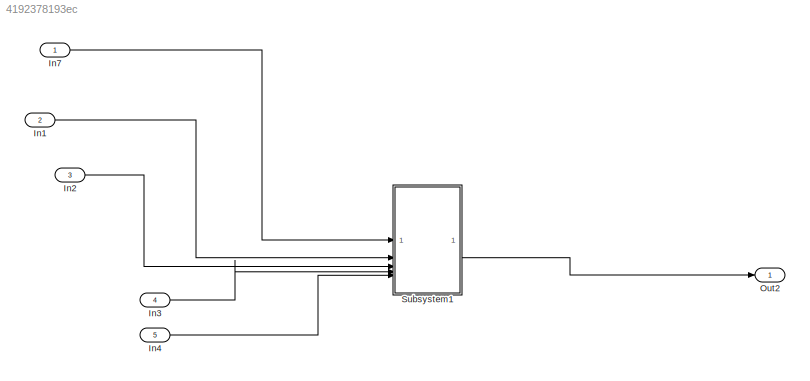
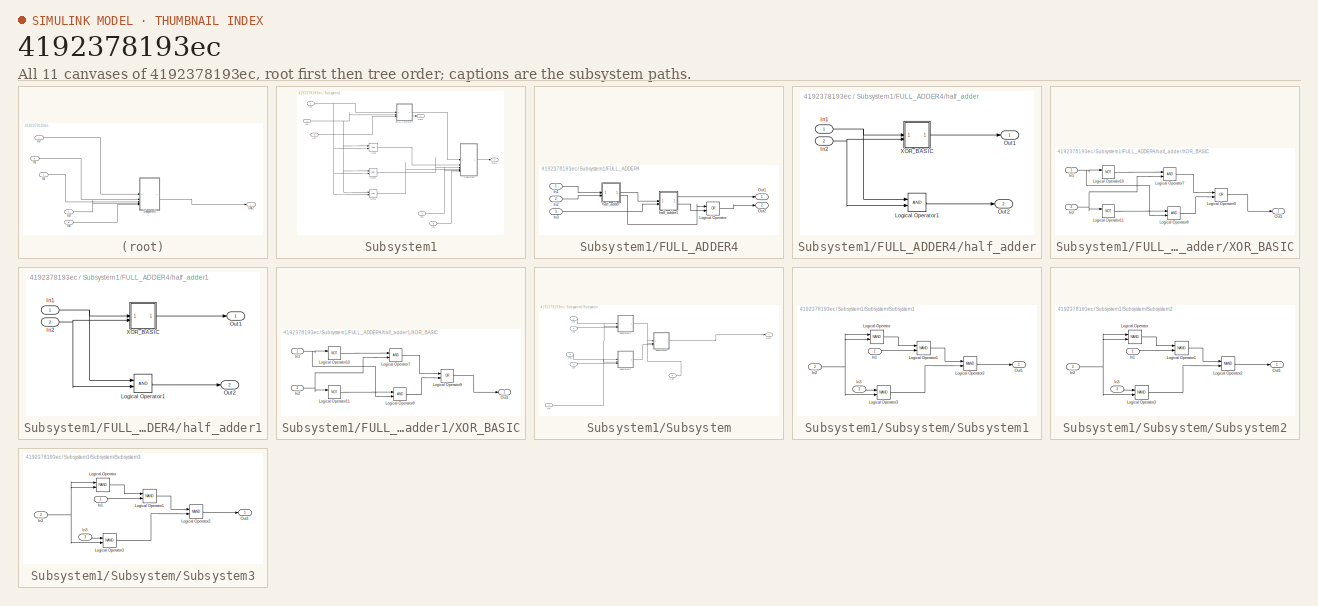
[diagram: thumbnail index - all 11 canvases of the model, root first then tree order]
MODEL slx_4192378193ec
KIND model
CONFIG AbsTol = auto
CONFIG EnableMultiTasking = off
CONFIG FixedStep = auto
CONFIG MaxStep = auto
CONFIG MinStep = auto
CONFIG RelTol = 1e-3
CONFIG SampleTimeConstraint = Unconstrained
CONFIG SolverName = VariableStepAuto
CONFIG StartTime = 0.0
CONFIG StopTime = 10.0
BLOCK [Inport] In1
  Port = 2
BLOCK [Inport] In2
  Port = 3
BLOCK [Inport] In3
  Port = 4
BLOCK [Inport] In4
  Port = 5
BLOCK [Inport] In7
BLOCK [Outport] Out2
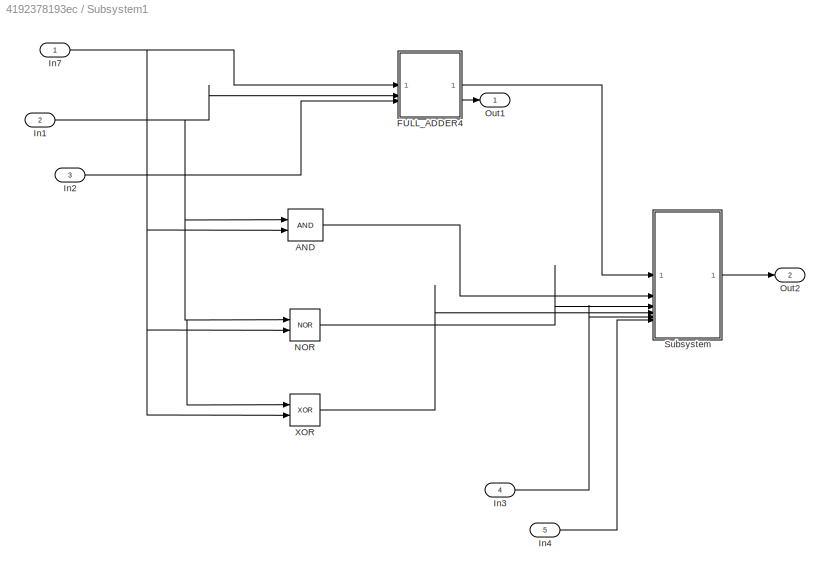
BLOCK [SubSystem] Subsystem1
BLOCK [Logic] Subsystem1/AND
  AllPortsSameDT = off
  IconShape = distinctive
  OutDataTypeStr = boolean
BLOCK [SubSystem] Subsystem1/FULL_ADDER4
BLOCK [Inport] Subsystem1/FULL_ADDER4/In1
BLOCK [Inport] Subsystem1/FULL_ADDER4/In2
  Port = 2
BLOCK [Inport] Subsystem1/FULL_ADDER4/In3
  Port = 3
BLOCK [Logic] Subsystem1/FULL_ADDER4/Logical Operator
  AllPortsSameDT = off
  Operator = OR
  OutDataTypeStr = boolean
BLOCK [Outport] Subsystem1/FULL_ADDER4/Out1
BLOCK [Outport] Subsystem1/FULL_ADDER4/Out2
  Port = 2
BLOCK [SubSystem] Subsystem1/FULL_ADDER4/half_adder
BLOCK [Inport] Subsystem1/FULL_ADDER4/half_adder/In1
BLOCK [Inport] Subsystem1/FULL_ADDER4/half_adder/In2
  Port = 2
BLOCK [Logic] Subsystem1/FULL_ADDER4/half_adder/Logical Operator1
  AllPortsSameDT = off
  OutDataTypeStr = boolean
BLOCK [Outport] Subsystem1/FULL_ADDER4/half_adder/Out1
BLOCK [Outport] Subsystem1/FULL_ADDER4/half_adder/Out2
  Port = 2
BLOCK [SubSystem] Subsystem1/FULL_ADDER4/half_adder/XOR_BASIC
BLOCK [Inport] Subsystem1/FULL_ADDER4/half_adder/XOR_BASIC/In1
BLOCK [Inport] Subsystem1/FULL_ADDER4/half_adder/XOR_BASIC/In2
  Port = 2
BLOCK [Logic] Subsystem1/FULL_ADDER4/half_adder/XOR_BASIC/Logical Operator10
  AllPortsSameDT = off
  IconShape = distinctive
  Operator = NOT
  OutDataTypeStr = boolean
BLOCK [Logic] Subsystem1/FULL_ADDER4/half_adder/XOR_BASIC/Logical Operator11
  AllPortsSameDT = off
  IconShape = distinctive
  Operator = NOT
  OutDataTypeStr = boolean
BLOCK [Logic] Subsystem1/FULL_ADDER4/half_adder/XOR_BASIC/Logical Operator7
  AllPortsSameDT = off
  IconShape = distinctive
  OutDataTypeStr = boolean
BLOCK [Logic] Subsystem1/FULL_ADDER4/half_adder/XOR_BASIC/Logical Operator8
  AllPortsSameDT = off
  IconShape = distinctive
  OutDataTypeStr = boolean
BLOCK [Logic] Subsystem1/FULL_ADDER4/half_adder/XOR_BASIC/Logical Operator9
  AllPortsSameDT = off
  IconShape = distinctive
  Operator = OR
  OutDataTypeStr = boolean
BLOCK [Outport] Subsystem1/FULL_ADDER4/half_adder/XOR_BASIC/Out1
BLOCK [SubSystem] Subsystem1/FULL_ADDER4/half_adder1
BLOCK [Inport] Subsystem1/FULL_ADDER4/half_adder1/In1
BLOCK [Inport] Subsystem1/FULL_ADDER4/half_adder1/In2
  Port = 2
BLOCK [Logic] Subsystem1/FULL_ADDER4/half_adder1/Logical Operator1
  AllPortsSameDT = off
  OutDataTypeStr = boolean
BLOCK [Outport] Subsystem1/FULL_ADDER4/half_adder1/Out1
BLOCK [Outport] Subsystem1/FULL_ADDER4/half_adder1/Out2
  Port = 2
BLOCK [SubSystem] Subsystem1/FULL_ADDER4/half_adder1/XOR_BASIC
BLOCK [Inport] Subsystem1/FULL_ADDER4/half_adder1/XOR_BASIC/In1
BLOCK [Inport] Subsystem1/FULL_ADDER4/half_adder1/XOR_BASIC/In2
  Port = 2
BLOCK [Logic] Subsystem1/FULL_ADDER4/half_adder1/XOR_BASIC/Logical Operator10
  AllPortsSameDT = off
  IconShape = distinctive
  Operator = NOT
  OutDataTypeStr = boolean
BLOCK [Logic] Subsystem1/FULL_ADDER4/half_adder1/XOR_BASIC/Logical Operator11
  AllPortsSameDT = off
  IconShape = distinctive
  Operator = NOT
  OutDataTypeStr = boolean
BLOCK [Logic] Subsystem1/FULL_ADDER4/half_adder1/XOR_BASIC/Logical Operator7
  AllPortsSameDT = off
  IconShape = distinctive
  OutDataTypeStr = boolean
BLOCK [Logic] Subsystem1/FULL_ADDER4/half_adder1/XOR_BASIC/Logical Operator8
  AllPortsSameDT = off
  IconShape = distinctive
  OutDataTypeStr = boolean
BLOCK [Logic] Subsystem1/FULL_ADDER4/half_adder1/XOR_BASIC/Logical Operator9
  AllPortsSameDT = off
  IconShape = distinctive
  Operator = OR
  OutDataTypeStr = boolean
BLOCK [Outport] Subsystem1/FULL_ADDER4/half_adder1/XOR_BASIC/Out1
BLOCK [Inport] Subsystem1/In1
  Port = 2
BLOCK [Inport] Subsystem1/In2
  Port = 3
BLOCK [Inport] Subsystem1/In3
  Port = 4
BLOCK [Inport] Subsystem1/In4
  Port = 5
BLOCK [Inport] Subsystem1/In7
BLOCK [Logic] Subsystem1/NOR
  AllPortsSameDT = off
  IconShape = distinctive
  Operator = NOR
  OutDataTypeStr = boolean
BLOCK [Outport] Subsystem1/Out1
BLOCK [Outport] Subsystem1/Out2
  Port = 2
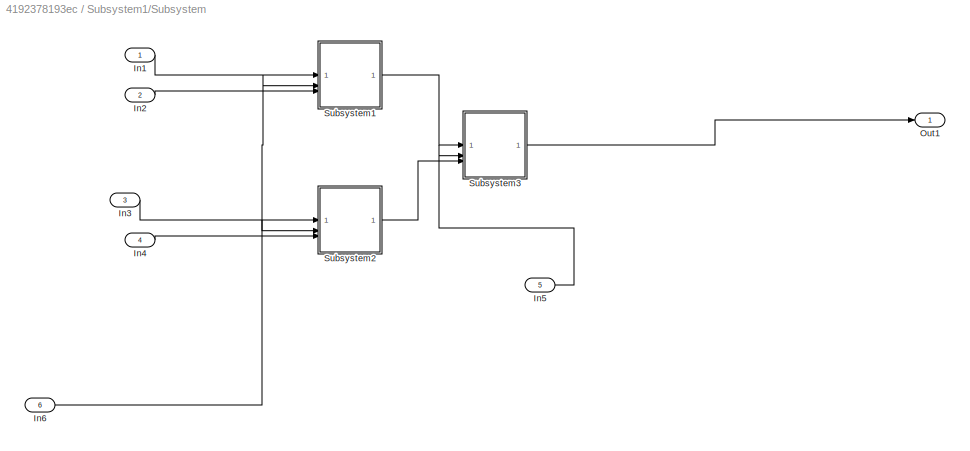
BLOCK [SubSystem] Subsystem1/Subsystem
BLOCK [Inport] Subsystem1/Subsystem/In1
BLOCK [Inport] Subsystem1/Subsystem/In2
  Port = 2
BLOCK [Inport] Subsystem1/Subsystem/In3
  Port = 3
BLOCK [Inport] Subsystem1/Subsystem/In4
  Port = 4
BLOCK [Inport] Subsystem1/Subsystem/In5
  Port = 5
BLOCK [Inport] Subsystem1/Subsystem/In6
  Port = 6
BLOCK [Outport] Subsystem1/Subsystem/Out1
BLOCK [SubSystem] Subsystem1/Subsystem/Subsystem1
BLOCK [Inport] Subsystem1/Subsystem/Subsystem1/In1
BLOCK [Inport] Subsystem1/Subsystem/Subsystem1/In2
  Port = 2
BLOCK [Inport] Subsystem1/Subsystem/Subsystem1/In3
  Port = 3
BLOCK [Logic] Subsystem1/Subsystem/Subsystem1/Logical Operator
  AllPortsSameDT = off
  Operator = NAND
  OutDataTypeStr = boolean
BLOCK [Logic] Subsystem1/Subsystem/Subsystem1/Logical Operator1
  AllPortsSameDT = off
  Operator = NAND
  OutDataTypeStr = boolean
BLOCK [Logic] Subsystem1/Subsystem/Subsystem1/Logical Operator2
  AllPortsSameDT = off
  Operator = NAND
  OutDataTypeStr = boolean
BLOCK [Logic] Subsystem1/Subsystem/Subsystem1/Logical Operator3
  AllPortsSameDT = off
  Operator = NAND
  OutDataTypeStr = boolean
BLOCK [Outport] Subsystem1/Subsystem/Subsystem1/Out1
BLOCK [SubSystem] Subsystem1/Subsystem/Subsystem2
BLOCK [Inport] Subsystem1/Subsystem/Subsystem2/In1
BLOCK [Inport] Subsystem1/Subsystem/Subsystem2/In2
  Port = 2
BLOCK [Inport] Subsystem1/Subsystem/Subsystem2/In3
  Port = 3
BLOCK [Logic] Subsystem1/Subsystem/Subsystem2/Logical Operator
  AllPortsSameDT = off
  Operator = NAND
  OutDataTypeStr = boolean
BLOCK [Logic] Subsystem1/Subsystem/Subsystem2/Logical Operator1
  AllPortsSameDT = off
  Operator = NAND
  OutDataTypeStr = boolean
BLOCK [Logic] Subsystem1/Subsystem/Subsystem2/Logical Operator2
  AllPortsSameDT = off
  Operator = NAND
  OutDataTypeStr = boolean
BLOCK [Logic] Subsystem1/Subsystem/Subsystem2/Logical Operator3
  AllPortsSameDT = off
  Operator = NAND
  OutDataTypeStr = boolean
BLOCK [Outport] Subsystem1/Subsystem/Subsystem2/Out1
BLOCK [SubSystem] Subsystem1/Subsystem/Subsystem3
BLOCK [Inport] Subsystem1/Subsystem/Subsystem3/In1
BLOCK [Inport] Subsystem1/Subsystem/Subsystem3/In2
  Port = 2
BLOCK [Inport] Subsystem1/Subsystem/Subsystem3/In3
  Port = 3
BLOCK [Logic] Subsystem1/Subsystem/Subsystem3/Logical Operator
  AllPortsSameDT = off
  Operator = NAND
  OutDataTypeStr = boolean
BLOCK [Logic] Subsystem1/Subsystem/Subsystem3/Logical Operator1
  AllPortsSameDT = off
  Operator = NAND
  OutDataTypeStr = boolean
BLOCK [Logic] Subsystem1/Subsystem/Subsystem3/Logical Operator2
  AllPortsSameDT = off
  Operator = NAND
  OutDataTypeStr = boolean
BLOCK [Logic] Subsystem1/Subsystem/Subsystem3/Logical Operator3
  AllPortsSameDT = off
  Operator = NAND
  OutDataTypeStr = boolean
BLOCK [Outport] Subsystem1/Subsystem/Subsystem3/Out1
BLOCK [Logic] Subsystem1/XOR
  AllPortsSameDT = off
  IconShape = distinctive
  Operator = XOR
  OutDataTypeStr = boolean
LINE In1:1 -> Subsystem1:2
LINE In2:1 -> Subsystem1:3
LINE In3:1 -> Subsystem1:4
LINE In4:1 -> Subsystem1:5
LINE In7:1 -> Subsystem1:1
LINE Subsystem1/AND:1 -> Subsystem1/Subsystem:2
LINE Subsystem1/FULL_ADDER4/In1:1 -> Subsystem1/FULL_ADDER4/half_adder:1
LINE Subsystem1/FULL_ADDER4/In2:1 -> Subsystem1/FULL_ADDER4/half_adder:2
LINE Subsystem1/FULL_ADDER4/In3:1 -> Subsystem1/FULL_ADDER4/half_adder1:2
LINE Subsystem1/FULL_ADDER4/Logical Operator:1 -> Subsystem1/FULL_ADDER4/Out2:1
NET Subsystem1/FULL_ADDER4/half_adder/In1:1 -> Subsystem1/FULL_ADDER4/half_adder/Logical Operator1:1, Subsystem1/FULL_ADDER4/half_adder/XOR_BASIC:1
NET Subsystem1/FULL_ADDER4/half_adder/In2:1 -> Subsystem1/FULL_ADDER4/half_adder/Logical Operator1:2, Subsystem1/FULL_ADDER4/half_adder/XOR_BASIC:2
LINE Subsystem1/FULL_ADDER4/half_adder/Logical Operator1:1 -> Subsystem1/FULL_ADDER4/half_adder/Out2:1
NET Subsystem1/FULL_ADDER4/half_adder/XOR_BASIC/In1:1 -> Subsystem1/FULL_ADDER4/half_adder/XOR_BASIC/Logical Operator10:1, Subsystem1/FULL_ADDER4/half_adder/XOR_BASIC/Logical Operator8:2
NET Subsystem1/FULL_ADDER4/half_adder/XOR_BASIC/In2:1 -> Subsystem1/FULL_ADDER4/half_adder/XOR_BASIC/Logical Operator11:1, Subsystem1/FULL_ADDER4/half_adder/XOR_BASIC/Logical Operator7:2
LINE Subsystem1/FULL_ADDER4/half_adder/XOR_BASIC/Logical Operator10:1 -> Subsystem1/FULL_ADDER4/half_adder/XOR_BASIC/Logical Operator7:1
LINE Subsystem1/FULL_ADDER4/half_adder/XOR_BASIC/Logical Operator11:1 -> Subsystem1/FULL_ADDER4/half_adder/XOR_BASIC/Logical Operator8:1
LINE Subsystem1/FULL_ADDER4/half_adder/XOR_BASIC/Logical Operator7:1 -> Subsystem1/FULL_ADDER4/half_adder/XOR_BASIC/Logical Operator9:1
LINE Subsystem1/FULL_ADDER4/half_adder/XOR_BASIC/Logical Operator8:1 -> Subsystem1/FULL_ADDER4/half_adder/XOR_BASIC/Logical Operator9:2
LINE Subsystem1/FULL_ADDER4/half_adder/XOR_BASIC/Logical Operator9:1 -> Subsystem1/FULL_ADDER4/half_adder/XOR_BASIC/Out1:1
LINE Subsystem1/FULL_ADDER4/half_adder/XOR_BASIC:1 -> Subsystem1/FULL_ADDER4/half_adder/Out1:1
NET Subsystem1/FULL_ADDER4/half_adder1/In1:1 -> Subsystem1/FULL_ADDER4/half_adder1/Logical Operator1:1, Subsystem1/FULL_ADDER4/half_adder1/XOR_BASIC:1
NET Subsystem1/FULL_ADDER4/half_adder1/In2:1 -> Subsystem1/FULL_ADDER4/half_adder1/Logical Operator1:2, Subsystem1/FULL_ADDER4/half_adder1/XOR_BASIC:2
LINE Subsystem1/FULL_ADDER4/half_adder1/Logical Operator1:1 -> Subsystem1/FULL_ADDER4/half_adder1/Out2:1
NET Subsystem1/FULL_ADDER4/half_adder1/XOR_BASIC/In1:1 -> Subsystem1/FULL_ADDER4/half_adder1/XOR_BASIC/Logical Operator10:1, Subsystem1/FULL_ADDER4/half_adder1/XOR_BASIC/Logical Operator8:2
NET Subsystem1/FULL_ADDER4/half_adder1/XOR_BASIC/In2:1 -> Subsystem1/FULL_ADDER4/half_adder1/XOR_BASIC/Logical Operator11:1, Subsystem1/FULL_ADDER4/half_adder1/XOR_BASIC/Logical Operator7:2
LINE Subsystem1/FULL_ADDER4/half_adder1/XOR_BASIC/Logical Operator10:1 -> Subsystem1/FULL_ADDER4/half_adder1/XOR_BASIC/Logical Operator7:1
LINE Subsystem1/FULL_ADDER4/half_adder1/XOR_BASIC/Logical Operator11:1 -> Subsystem1/FULL_ADDER4/half_adder1/XOR_BASIC/Logical Operator8:1
LINE Subsystem1/FULL_ADDER4/half_adder1/XOR_BASIC/Logical Operator7:1 -> Subsystem1/FULL_ADDER4/half_adder1/XOR_BASIC/Logical Operator9:1
LINE Subsystem1/FULL_ADDER4/half_adder1/XOR_BASIC/Logical Operator8:1 -> Subsystem1/FULL_ADDER4/half_adder1/XOR_BASIC/Logical Operator9:2
LINE Subsystem1/FULL_ADDER4/half_adder1/XOR_BASIC/Logical Operator9:1 -> Subsystem1/FULL_ADDER4/half_adder1/XOR_BASIC/Out1:1
LINE Subsystem1/FULL_ADDER4/half_adder1/XOR_BASIC:1 -> Subsystem1/FULL_ADDER4/half_adder1/Out1:1
LINE Subsystem1/FULL_ADDER4/half_adder1:1 -> Subsystem1/FULL_ADDER4/Out1:1
LINE Subsystem1/FULL_ADDER4/half_adder1:2 -> Subsystem1/FULL_ADDER4/Logical Operator:2
LINE Subsystem1/FULL_ADDER4/half_adder:1 -> Subsystem1/FULL_ADDER4/half_adder1:1
LINE Subsystem1/FULL_ADDER4/half_adder:2 -> Subsystem1/FULL_ADDER4/Logical Operator:1
LINE Subsystem1/FULL_ADDER4:1 -> Subsystem1/Subsystem:1
LINE Subsystem1/FULL_ADDER4:2 -> Subsystem1/Out1:1
NET Subsystem1/In1:1 -> Subsystem1/AND:1, Subsystem1/FULL_ADDER4:2, Subsystem1/NOR:1, Subsystem1/XOR:1
LINE Subsystem1/In2:1 -> Subsystem1/FULL_ADDER4:3
LINE Subsystem1/In3:1 -> Subsystem1/Subsystem:5
LINE Subsystem1/In4:1 -> Subsystem1/Subsystem:6
NET Subsystem1/In7:1 -> Subsystem1/AND:2, Subsystem1/FULL_ADDER4:1, Subsystem1/NOR:2, Subsystem1/XOR:2
LINE Subsystem1/NOR:1 -> Subsystem1/Subsystem:3
LINE Subsystem1/Subsystem/In1:1 -> Subsystem1/Subsystem/Subsystem1:1
LINE Subsystem1/Subsystem/In2:1 -> Subsystem1/Subsystem/Subsystem1:3
LINE Subsystem1/Subsystem/In3:1 -> Subsystem1/Subsystem/Subsystem2:1
LINE Subsystem1/Subsystem/In4:1 -> Subsystem1/Subsystem/Subsystem2:3
LINE Subsystem1/Subsystem/In5:1 -> Subsystem1/Subsystem/Subsystem3:2
NET Subsystem1/Subsystem/In6:1 -> Subsystem1/Subsystem/Subsystem1:2, Subsystem1/Subsystem/Subsystem2:2
LINE Subsystem1/Subsystem/Subsystem1/In1:1 -> Subsystem1/Subsystem/Subsystem1/Logical Operator1:2
NET Subsystem1/Subsystem/Subsystem1/In2:1 -> Subsystem1/Subsystem/Subsystem1/Logical Operator3:2, Subsystem1/Subsystem/Subsystem1/Logical Operator:1, Subsystem1/Subsystem/Subsystem1/Logical Operator:2
LINE Subsystem1/Subsystem/Subsystem1/In3:1 -> Subsystem1/Subsystem/Subsystem1/Logical Operator3:1
LINE Subsystem1/Subsystem/Subsystem1/Logical Operator1:1 -> Subsystem1/Subsystem/Subsystem1/Logical Operator2:1
LINE Subsystem1/Subsystem/Subsystem1/Logical Operator2:1 -> Subsystem1/Subsystem/Subsystem1/Out1:1
LINE Subsystem1/Subsystem/Subsystem1/Logical Operator3:1 -> Subsystem1/Subsystem/Subsystem1/Logical Operator2:2
LINE Subsystem1/Subsystem/Subsystem1/Logical Operator:1 -> Subsystem1/Subsystem/Subsystem1/Logical Operator1:1
LINE Subsystem1/Subsystem/Subsystem1:1 -> Subsystem1/Subsystem/Subsystem3:1
LINE Subsystem1/Subsystem/Subsystem2/In1:1 -> Subsystem1/Subsystem/Subsystem2/Logical Operator1:2
NET Subsystem1/Subsystem/Subsystem2/In2:1 -> Subsystem1/Subsystem/Subsystem2/Logical Operator3:2, Subsystem1/Subsystem/Subsystem2/Logical Operator:1, Subsystem1/Subsystem/Subsystem2/Logical Operator:2
LINE Subsystem1/Subsystem/Subsystem2/In3:1 -> Subsystem1/Subsystem/Subsystem2/Logical Operator3:1
LINE Subsystem1/Subsystem/Subsystem2/Logical Operator1:1 -> Subsystem1/Subsystem/Subsystem2/Logical Operator2:1
LINE Subsystem1/Subsystem/Subsystem2/Logical Operator2:1 -> Subsystem1/Subsystem/Subsystem2/Out1:1
LINE Subsystem1/Subsystem/Subsystem2/Logical Operator3:1 -> Subsystem1/Subsystem/Subsystem2/Logical Operator2:2
LINE Subsystem1/Subsystem/Subsystem2/Logical Operator:1 -> Subsystem1/Subsystem/Subsystem2/Logical Operator1:1
LINE Subsystem1/Subsystem/Subsystem2:1 -> Subsystem1/Subsystem/Subsystem3:3
LINE Subsystem1/Subsystem/Subsystem3/In1:1 -> Subsystem1/Subsystem/Subsystem3/Logical Operator1:2
NET Subsystem1/Subsystem/Subsystem3/In2:1 -> Subsystem1/Subsystem/Subsystem3/Logical Operator3:2, Subsystem1/Subsystem/Subsystem3/Logical Operator:1, Subsystem1/Subsystem/Subsystem3/Logical Operator:2
LINE Subsystem1/Subsystem/Subsystem3/In3:1 -> Subsystem1/Subsystem/Subsystem3/Logical Operator3:1
LINE Subsystem1/Subsystem/Subsystem3/Logical Operator1:1 -> Subsystem1/Subsystem/Subsystem3/Logical Operator2:1
LINE Subsystem1/Subsystem/Subsystem3/Logical Operator2:1 -> Subsystem1/Subsystem/Subsystem3/Out1:1
LINE Subsystem1/Subsystem/Subsystem3/Logical Operator3:1 -> Subsystem1/Subsystem/Subsystem3/Logical Operator2:2
LINE Subsystem1/Subsystem/Subsystem3/Logical Operator:1 -> Subsystem1/Subsystem/Subsystem3/Logical Operator1:1
LINE Subsystem1/Subsystem/Subsystem3:1 -> Subsystem1/Subsystem/Out1:1
LINE Subsystem1/Subsystem:1 -> Subsystem1/Out2:1
LINE Subsystem1/XOR:1 -> Subsystem1/Subsystem:4
LINE Subsystem1:2 -> Out2:1
note: NET lines group one-source signal fan-out (src -> all destinations, sorted); 1:1 wires keep LINE
